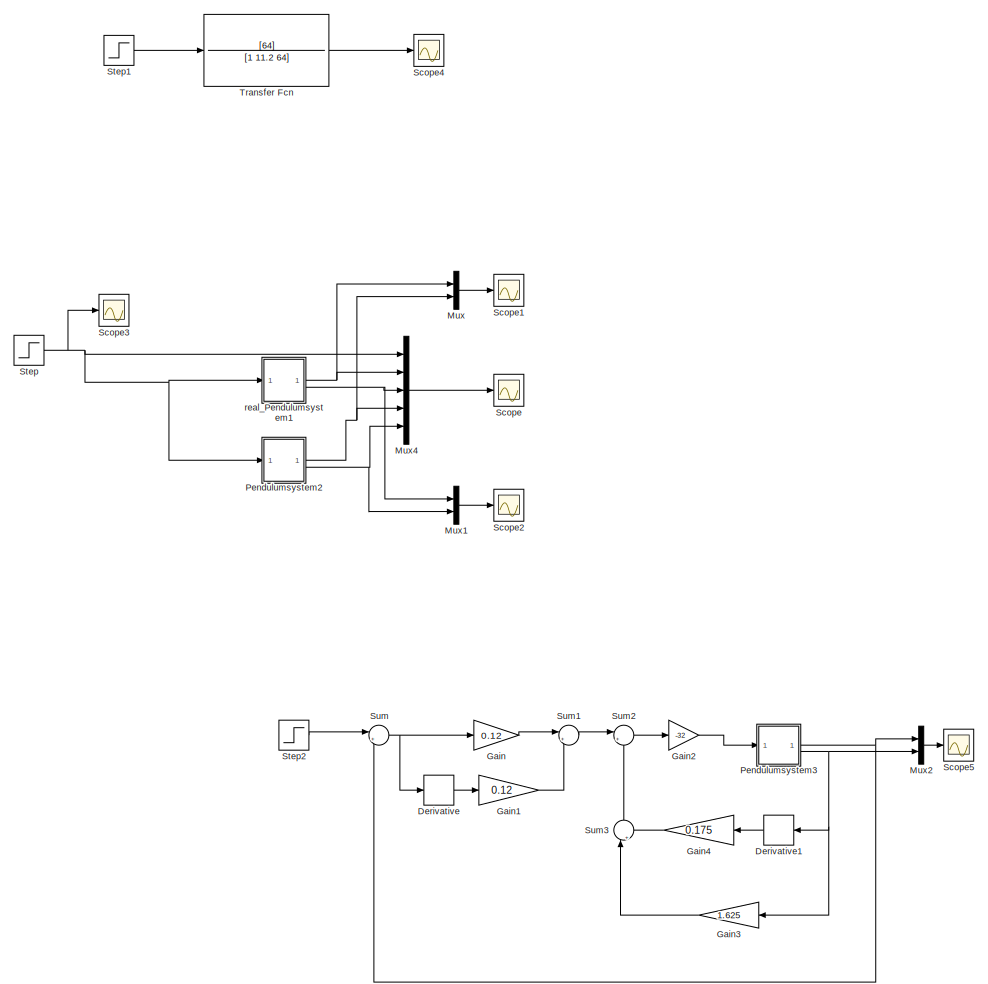
[diagram: root canvas - part 1/2, full width, top band]
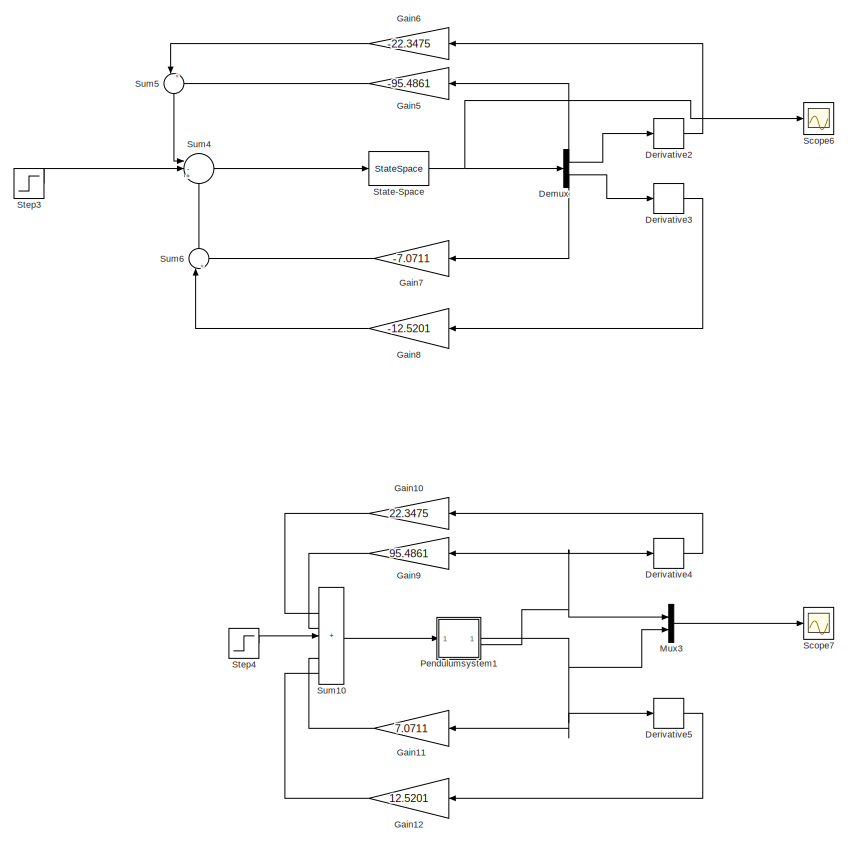
[diagram: root canvas - part 2/2, full width, bottom band]
MODEL slx_a84119ebd11a
KIND model
CONFIG AbsTol = auto
CONFIG EnableMultiTasking = off
CONFIG FixedStep = auto
CONFIG MaxStep = auto
CONFIG MinStep = auto
CONFIG RelTol = 1e-3
CONFIG SampleTimeConstraint = Unconstrained
CONFIG SolverName = ode45
CONFIG StartTime = 0.0
CONFIG StopTime = 10
BLOCK [Demux] Demux
  Commented = on
  Outputs = 2
BLOCK [Derivative] Derivative
  Commented = on
BLOCK [Derivative] Derivative1
  Commented = on
  NameLocation = top
BLOCK [Derivative] Derivative2
  Commented = on
BLOCK [Derivative] Derivative3
  Commented = on
BLOCK [Derivative] Derivative4
BLOCK [Derivative] Derivative5
BLOCK [Gain] Gain
  Commented = on
  Gain = 0.12
BLOCK [Gain] Gain1
  Commented = on
  Gain = 0.12
BLOCK [Gain] Gain10
  Gain = 22.3475
  NameLocation = top
BLOCK [Gain] Gain11
  Gain = 7.0711
  NameLocation = top
BLOCK [Gain] Gain12
  Gain = 12.5201
  NameLocation = top
BLOCK [Gain] Gain2
  Commented = on
  Gain = -32
BLOCK [Gain] Gain3
  Commented = on
  Gain = 1.625
  NameLocation = top
BLOCK [Gain] Gain4
  Commented = on
  Gain = 0.175
  NameLocation = top
BLOCK [Gain] Gain5
  Commented = on
  Gain = -95.4861
  NameLocation = top
BLOCK [Gain] Gain6
  Commented = on
  Gain = -22.3475
  NameLocation = top
BLOCK [Gain] Gain7
  Commented = on
  Gain = -7.0711
  NameLocation = top
BLOCK [Gain] Gain8
  Commented = on
  Gain = -12.5201
  NameLocation = top
BLOCK [Gain] Gain9
  Gain = 95.4861
  NameLocation = top
BLOCK [Mux] Mux
  Commented = on
  DisplayOption = bar
  Inputs = 2
BLOCK [Mux] Mux1
  Commented = on
  DisplayOption = bar
  Inputs = 2
BLOCK [Mux] Mux2
  Commented = on
  DisplayOption = bar
  Inputs = 2
BLOCK [Mux] Mux3
  DisplayOption = bar
  Inputs = 2
BLOCK [Mux] Mux4
  Commented = on
  DisplayOption = bar
  Inputs = 5
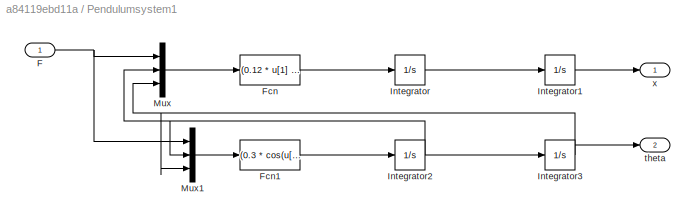
BLOCK [SubSystem] Pendulumsystem1
BLOCK [Inport] Pendulumsystem1/F
BLOCK [Fcn] Pendulumsystem1/Fcn
  Expr = (0.12 * u[1] + 0.036 * sin(u[3]) * power(u[2], 2) - 0.9 * sin(u[3]) * cos(u[3]))/(0.24 - 0.09 * power(cos(u[3]), 2))
BLOCK [Fcn] Pendulumsystem1/Fcn1
  Expr = (0.3 * cos(u[3]) * u[1] + 0.09 * sin(u[3]) * cos(u[3]) * power(u[2], 2) - 6 * sin(u[3]))/(0.09 * power(cos(u[3]), 2) - 0.24)
BLOCK [Integrator] Pendulumsystem1/Integrator
BLOCK [Integrator] Pendulumsystem1/Integrator1
BLOCK [Integrator] Pendulumsystem1/Integrator2
BLOCK [Integrator] Pendulumsystem1/Integrator3
BLOCK [Mux] Pendulumsystem1/Mux
  DisplayOption = bar
  Inputs = 3
BLOCK [Mux] Pendulumsystem1/Mux1
  DisplayOption = bar
  Inputs = 3
BLOCK [Outport] Pendulumsystem1/theta
  Port = 2
BLOCK [Outport] Pendulumsystem1/x
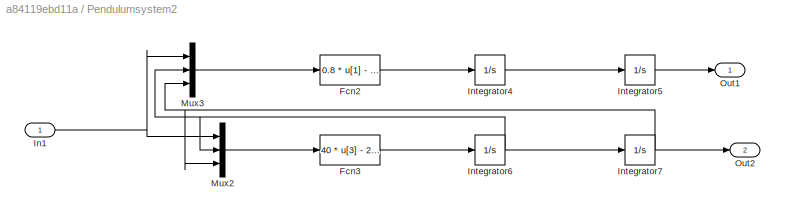
BLOCK [SubSystem] Pendulumsystem2
  Commented = on
BLOCK [Fcn] Pendulumsystem2/Fcn2
  Expr = 0.8 * u[1] - 6 * u[3]
BLOCK [Fcn] Pendulumsystem2/Fcn3
  Expr = 40 * u[3] - 2.0 * u[1]
BLOCK [Inport] Pendulumsystem2/In1
BLOCK [Integrator] Pendulumsystem2/Integrator4
BLOCK [Integrator] Pendulumsystem2/Integrator5
BLOCK [Integrator] Pendulumsystem2/Integrator6
BLOCK [Integrator] Pendulumsystem2/Integrator7
BLOCK [Mux] Pendulumsystem2/Mux2
  DisplayOption = bar
  Inputs = 3
BLOCK [Mux] Pendulumsystem2/Mux3
  DisplayOption = bar
  Inputs = 3
BLOCK [Outport] Pendulumsystem2/Out1
BLOCK [Outport] Pendulumsystem2/Out2
  Port = 2
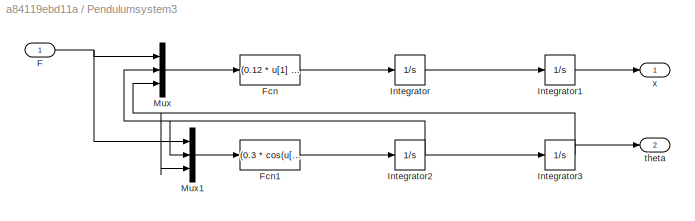
BLOCK [SubSystem] Pendulumsystem3
  Commented = on
BLOCK [Inport] Pendulumsystem3/F
BLOCK [Fcn] Pendulumsystem3/Fcn
  Expr = (0.12 * u[1] + 0.036 * sin(u[3]) * power(u[2], 2) - 0.9 * sin(u[3]) * cos(u[3]))/(0.24 - 0.09 * power(cos(u[3]), 2))
BLOCK [Fcn] Pendulumsystem3/Fcn1
  Expr = (0.3 * cos(u[3]) * u[1] + 0.09 * sin(u[3]) * cos(u[3]) * power(u[2], 2) - 6 * sin(u[3]))/(0.09 * power(cos(u[3]), 2) - 0.24)
BLOCK [Integrator] Pendulumsystem3/Integrator
BLOCK [Integrator] Pendulumsystem3/Integrator1
BLOCK [Integrator] Pendulumsystem3/Integrator2
BLOCK [Integrator] Pendulumsystem3/Integrator3
BLOCK [Mux] Pendulumsystem3/Mux
  DisplayOption = bar
  Inputs = 3
BLOCK [Mux] Pendulumsystem3/Mux1
  DisplayOption = bar
  Inputs = 3
BLOCK [Outport] Pendulumsystem3/theta
  Port = 2
BLOCK [Outport] Pendulumsystem3/x
BLOCK [Scope] Scope
  Commented = on
  Floating = off
  NumInputPorts = 1
  ScopeSpecificationString = Simulink.scopes.TimeScopeBlockCfg('CurrentConfiguration', extmgr.ConfigurationSet(extmgr.Configuration('Core','General UI',true),extmgr.Configuration('Core','Source UI',true),extmgr.Configuration('Sources','WiredSimulink',true),extmgr.Configuration('Visuals','Time Domain',true,'SerializedDisplays',{struct('MinYLimReal','-0.74858','MaxYLimReal','0.19745','YLabelReal','','MinYLimMag','0.00000','MaxY...<+1458ch>
BLOCK [Scope] Scope1
  Commented = on
  Floating = off
  NumInputPorts = 1
  ScopeSpecificationString = Simulink.scopes.TimeScopeBlockCfg('CurrentConfiguration', extmgr.ConfigurationSet(extmgr.Configuration('Core','General UI',true),extmgr.Configuration('Core','Source UI',true),extmgr.Configuration('Sources','WiredSimulink',true,'DataLoggingVariableName','ScopeData1'),extmgr.Configuration('Visuals','Time Domain',true,'SerializedDisplays',{struct('MinYLimReal','-0.01286','MaxYLimReal','0.1157','YLabe...<+1421ch>
BLOCK [Scope] Scope2
  Commented = on
  Floating = off
  NumInputPorts = 1
  ScopeSpecificationString = Simulink.scopes.TimeScopeBlockCfg('CurrentConfiguration', extmgr.ConfigurationSet(extmgr.Configuration('Core','General UI',true),extmgr.Configuration('Core','Source UI',true),extmgr.Configuration('Sources','WiredSimulink',true,'DataLoggingVariableName','ScopeData2'),extmgr.Configuration('Visuals','Time Domain',true,'SerializedDisplays',{struct('MinYLimReal','-0.73573','MaxYLimReal','0.08175','YLab...<+1426ch>
BLOCK [Scope] Scope3
  Commented = on
  Floating = off
  NumInputPorts = 1
  ScopeSpecificationString = Simulink.scopes.TimeScopeBlockCfg('CurrentConfiguration', extmgr.ConfigurationSet(extmgr.Configuration('Core','General UI',true),extmgr.Configuration('Core','Source UI',true),extmgr.Configuration('Sources','WiredSimulink',true,'DataLoggingVariableName','ScopeData3'),extmgr.Configuration('Visuals','Time Domain',true),extmgr.Configuration('Tools','Plot Navigation',true),extmgr.Configuration('Tools',...<+40ch>
BLOCK [Scope] Scope4
  Commented = on
  Floating = off
  NumInputPorts = 1
  ScopeSpecificationString = Simulink.scopes.TimeScopeBlockCfg('CurrentConfiguration', extmgr.ConfigurationSet(extmgr.Configuration('Core','General UI',true),extmgr.Configuration('Core','Source UI',true),extmgr.Configuration('Sources','WiredSimulink',true,'DataLoggingVariableName','ScopeData4'),extmgr.Configuration('Visuals','Time Domain',true,'SerializedDisplays',{struct('MinYLimReal','-0.13075','MaxYLimReal','1.17673','YLab...<+1401ch>
BLOCK [Scope] Scope5
  Commented = on
  Floating = off
  NumInputPorts = 1
  ScopeSpecificationString = Simulink.scopes.TimeScopeBlockCfg('CurrentConfiguration', extmgr.ConfigurationSet(extmgr.Configuration('Core','General UI',true),extmgr.Configuration('Core','Source UI',true),extmgr.Configuration('Sources','WiredSimulink',true,'DataLoggingVariableName','ScopeData5'),extmgr.Configuration('Visuals','Time Domain',true,'SerializedDisplays',{struct('MinYLimReal','-0.19397','MaxYLimReal','1.28954','YLab...<+1451ch>
BLOCK [Scope] Scope6
  Commented = on
  Floating = off
  NumInputPorts = 1
  ScopeSpecificationString = Simulink.scopes.TimeScopeBlockCfg('CurrentConfiguration', extmgr.ConfigurationSet(extmgr.Configuration('Core','General UI',true),extmgr.Configuration('Core','Source UI',true),extmgr.Configuration('Sources','WiredSimulink',true,'DataLoggingVariableName','ScopeData1'),extmgr.Configuration('Visuals','Time Domain',true,'SerializedDisplays',{struct('MinYLimReal','-0.15954','MaxYLimReal','0.02191','YLab...<+1417ch>
BLOCK [Scope] Scope7
  Floating = off
  NumInputPorts = 1
  ScopeSpecificationString = Simulink.scopes.TimeScopeBlockCfg('CurrentConfiguration', extmgr.ConfigurationSet(extmgr.Configuration('Core','General UI',true),extmgr.Configuration('Core','Source UI',true),extmgr.Configuration('Sources','WiredSimulink',true,'DataLoggingVariableName','ScopeData2'),extmgr.Configuration('Visuals','Time Domain',true,'SerializedDisplays',{struct('MinYLimReal','-0.15954','MaxYLimReal','0.02191','YLab...<+1425ch>
BLOCK [StateSpace] State-Space
  A = [0 1 0 0;40 0 0 0;0 0 0 1;-6 0 0 0]
  B = [0;-2;0;0.8]
  C = [1 0 0 0;0 0 1 0]
  Commented = on
  D = [0;0]
  InitialCondition = 0
BLOCK [Step] Step
  After = 0
  Before = 0.1
  Commented = on
  SampleTime = 0
  Time = 0.1
BLOCK [Step] Step1
  Commented = on
  SampleTime = 0
  Time = 0
BLOCK [Step] Step2
  Commented = on
  SampleTime = 0
  Time = 0
BLOCK [Step] Step3
  Commented = on
  SampleTime = 0
  Time = 0
BLOCK [Step] Step4
  SampleTime = 0
  Time = 0
BLOCK [Sum] Sum
  Commented = on
  Inputs = |+-
BLOCK [Sum] Sum1
  Commented = on
  Inputs = |++
BLOCK [Sum] Sum10
  IconShape = rectangular
  Inputs = |+++++
BLOCK [Sum] Sum2
  Commented = on
  Inputs = |+-
BLOCK [Sum] Sum3
  Commented = on
  Inputs = |++
  NameLocation = right
BLOCK [Sum] Sum4
  Commented = on
  Inputs = |-+-
BLOCK [Sum] Sum5
  Commented = on
  Inputs = |++
  NameLocation = left
BLOCK [Sum] Sum6
  Commented = on
  Inputs = |++
  NameLocation = right
BLOCK [TransferFcn] Transfer Fcn
  Commented = on
  Denominator = [1 11.2 64]
  Numerator = [64]
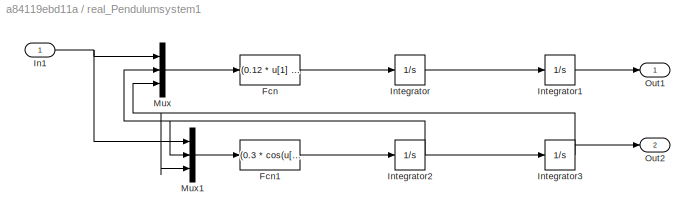
BLOCK [SubSystem] real_Pendulumsystem1
  Commented = on
BLOCK [Fcn] real_Pendulumsystem1/Fcn
  Expr = (0.12 * u[1] + 0.036 * sin(u[3]) * power(u[2], 2) - 0.9 * sin(u[3]) * cos(u[3]))/(0.24 - 0.09 * power(cos(u[3]), 2))
BLOCK [Fcn] real_Pendulumsystem1/Fcn1
  Expr = (0.3 * cos(u[3]) * u[1] + 0.09 * sin(u[3]) * cos(u[3]) * power(u[2], 2) - 6 * sin(u[3]))/(0.09 * power(cos(u[3]), 2) - 0.24)
BLOCK [Inport] real_Pendulumsystem1/In1
BLOCK [Integrator] real_Pendulumsystem1/Integrator
BLOCK [Integrator] real_Pendulumsystem1/Integrator1
BLOCK [Integrator] real_Pendulumsystem1/Integrator2
BLOCK [Integrator] real_Pendulumsystem1/Integrator3
BLOCK [Mux] real_Pendulumsystem1/Mux
  DisplayOption = bar
  Inputs = 3
BLOCK [Mux] real_Pendulumsystem1/Mux1
  DisplayOption = bar
  Inputs = 3
BLOCK [Outport] real_Pendulumsystem1/Out1
BLOCK [Outport] real_Pendulumsystem1/Out2
  Port = 2
NET Demux:1 -> Derivative2:1, Gain5:1
NET Demux:2 -> Derivative3:1, Gain7:1
LINE Derivative1:1 -> Gain4:1
LINE Derivative2:1 -> Gain6:1
LINE Derivative3:1 -> Gain8:1
LINE Derivative4:1 -> Gain10:1
LINE Derivative5:1 -> Gain12:1
LINE Derivative:1 -> Gain1:1
LINE Gain10:1 -> Sum10:1
LINE Gain11:1 -> Sum10:4
LINE Gain12:1 -> Sum10:5
LINE Gain1:1 -> Sum1:2
LINE Gain2:1 -> Pendulumsystem3:1
LINE Gain3:1 -> Sum3:1
LINE Gain4:1 -> Sum3:2
LINE Gain5:1 -> Sum5:2
LINE Gain6:1 -> Sum5:1
LINE Gain7:1 -> Sum6:2
LINE Gain8:1 -> Sum6:1
LINE Gain9:1 -> Sum10:2
LINE Gain:1 -> Sum1:1
LINE Mux1:1 -> Scope2:1
LINE Mux2:1 -> Scope5:1
LINE Mux3:1 -> Scope7:1
LINE Mux4:1 -> Scope:1
LINE Mux:1 -> Scope1:1
NET Pendulumsystem1/F:1 -> Pendulumsystem1/Mux1:1, Pendulumsystem1/Mux:1
LINE Pendulumsystem1/Fcn1:1 -> Pendulumsystem1/Integrator2:1
LINE Pendulumsystem1/Fcn:1 -> Pendulumsystem1/Integrator:1
LINE Pendulumsystem1/Integrator1:1 -> Pendulumsystem1/x:1
NET Pendulumsystem1/Integrator2:1 -> Pendulumsystem1/Integrator3:1, Pendulumsystem1/Mux1:2, Pendulumsystem1/Mux:2
NET Pendulumsystem1/Integrator3:1 -> Pendulumsystem1/Mux1:3, Pendulumsystem1/Mux:3, Pendulumsystem1/theta:1
LINE Pendulumsystem1/Integrator:1 -> Pendulumsystem1/Integrator1:1
LINE Pendulumsystem1/Mux1:1 -> Pendulumsystem1/Fcn1:1
LINE Pendulumsystem1/Mux:1 -> Pendulumsystem1/Fcn:1
NET Pendulumsystem1:1 -> Derivative5:1, Gain11:1, Mux3:2
NET Pendulumsystem1:2 -> Derivative4:1, Gain9:1, Mux3:1
LINE Pendulumsystem2/Fcn2:1 -> Pendulumsystem2/Integrator4:1
LINE Pendulumsystem2/Fcn3:1 -> Pendulumsystem2/Integrator6:1
NET Pendulumsystem2/In1:1 -> Pendulumsystem2/Mux2:1, Pendulumsystem2/Mux3:1
LINE Pendulumsystem2/Integrator4:1 -> Pendulumsystem2/Integrator5:1
LINE Pendulumsystem2/Integrator5:1 -> Pendulumsystem2/Out1:1
NET Pendulumsystem2/Integrator6:1 -> Pendulumsystem2/Integrator7:1, Pendulumsystem2/Mux2:2, Pendulumsystem2/Mux3:2
NET Pendulumsystem2/Integrator7:1 -> Pendulumsystem2/Mux2:3, Pendulumsystem2/Mux3:3, Pendulumsystem2/Out2:1
LINE Pendulumsystem2/Mux2:1 -> Pendulumsystem2/Fcn3:1
LINE Pendulumsystem2/Mux3:1 -> Pendulumsystem2/Fcn2:1
NET Pendulumsystem2:1 -> Mux4:4, Mux:2
NET Pendulumsystem2:2 -> Mux1:2, Mux4:5
NET Pendulumsystem3/F:1 -> Pendulumsystem3/Mux1:1, Pendulumsystem3/Mux:1
LINE Pendulumsystem3/Fcn1:1 -> Pendulumsystem3/Integrator2:1
LINE Pendulumsystem3/Fcn:1 -> Pendulumsystem3/Integrator:1
LINE Pendulumsystem3/Integrator1:1 -> Pendulumsystem3/x:1
NET Pendulumsystem3/Integrator2:1 -> Pendulumsystem3/Integrator3:1, Pendulumsystem3/Mux1:2, Pendulumsystem3/Mux:2
NET Pendulumsystem3/Integrator3:1 -> Pendulumsystem3/Mux1:3, Pendulumsystem3/Mux:3, Pendulumsystem3/theta:1
LINE Pendulumsystem3/Integrator:1 -> Pendulumsystem3/Integrator1:1
LINE Pendulumsystem3/Mux1:1 -> Pendulumsystem3/Fcn1:1
LINE Pendulumsystem3/Mux:1 -> Pendulumsystem3/Fcn:1
NET Pendulumsystem3:1 -> Mux2:1, Sum:2
NET Pendulumsystem3:2 -> Derivative1:1, Gain3:1, Mux2:2
NET State-Space:1 -> Demux:1, Scope6:1
LINE Step1:1 -> Transfer Fcn:1
LINE Step2:1 -> Sum:1
LINE Step3:1 -> Sum4:2
LINE Step4:1 -> Sum10:3
NET Step:1 -> Mux4:1, Pendulumsystem2:1, Scope3:1, real_Pendulumsystem1:1
LINE Sum10:1 -> Pendulumsystem1:1
LINE Sum1:1 -> Sum2:1
LINE Sum2:1 -> Gain2:1
LINE Sum3:1 -> Sum2:2
LINE Sum4:1 -> State-Space:1
LINE Sum5:1 -> Sum4:1
LINE Sum6:1 -> Sum4:3
NET Sum:1 -> Derivative:1, Gain:1
LINE Transfer Fcn:1 -> Scope4:1
LINE real_Pendulumsystem1/Fcn1:1 -> real_Pendulumsystem1/Integrator2:1
LINE real_Pendulumsystem1/Fcn:1 -> real_Pendulumsystem1/Integrator:1
NET real_Pendulumsystem1/In1:1 -> real_Pendulumsystem1/Mux1:1, real_Pendulumsystem1/Mux:1
LINE real_Pendulumsystem1/Integrator1:1 -> real_Pendulumsystem1/Out1:1
NET real_Pendulumsystem1/Integrator2:1 -> real_Pendulumsystem1/Integrator3:1, real_Pendulumsystem1/Mux1:2, real_Pendulumsystem1/Mux:2
NET real_Pendulumsystem1/Integrator3:1 -> real_Pendulumsystem1/Mux1:3, real_Pendulumsystem1/Mux:3, real_Pendulumsystem1/Out2:1
LINE real_Pendulumsystem1/Integrator:1 -> real_Pendulumsystem1/Integrator1:1
LINE real_Pendulumsystem1/Mux1:1 -> real_Pendulumsystem1/Fcn1:1
LINE real_Pendulumsystem1/Mux:1 -> real_Pendulumsystem1/Fcn:1
NET real_Pendulumsystem1:1 -> Mux4:2, Mux:1
NET real_Pendulumsystem1:2 -> Mux1:1, Mux4:3
note: NET lines group one-source signal fan-out (src -> all destinations, sorted); 1:1 wires keep LINE
